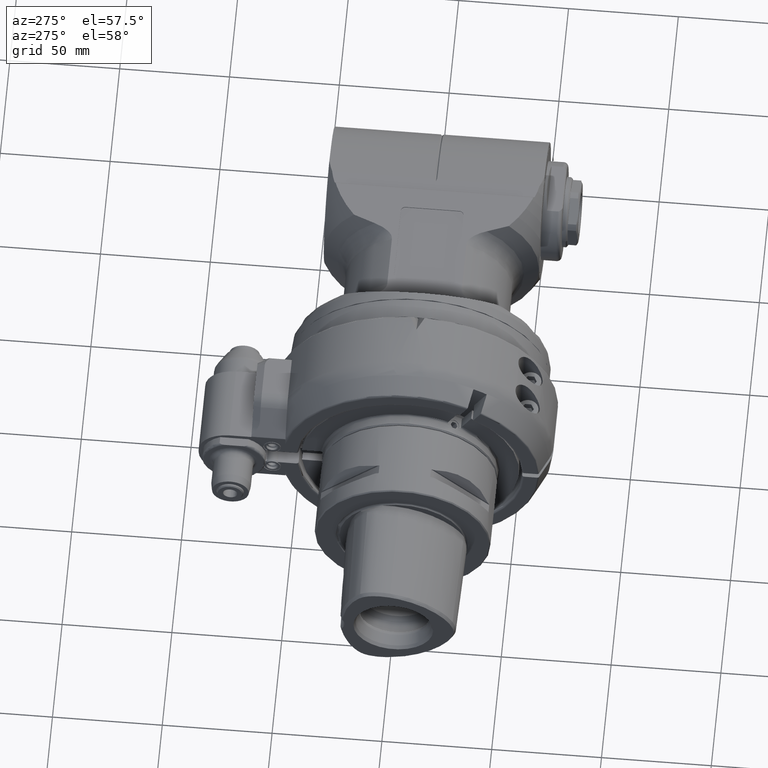
[diagram: clean part render]
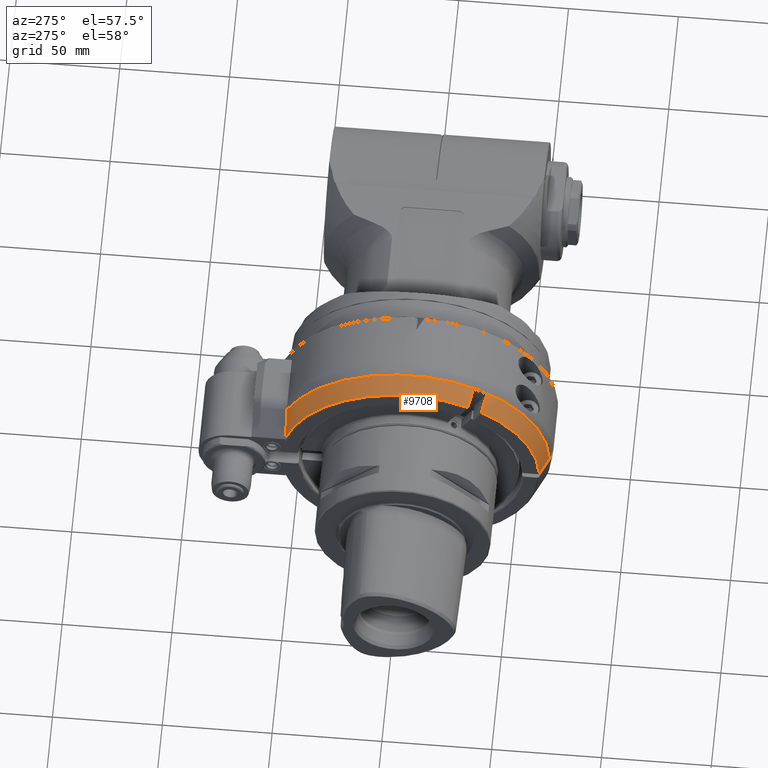
[diagram: same view with one face highlighted and labeled with its STEP entity id]
A machine part, auxiliary view. The second image highlights one B-rep face of the part: STEP entity #9708.
In plain terms, the highlighted conical surface has half-angle 25 deg.
Its self-contained STEP definition (entity closure, byte-faithful):
#171=CONICAL_SURFACE('',#10599,2.39089658552638,0.436332312998582);
#400=B_SPLINE_CURVE_WITH_KNOTS('',3,(#15901,#15902,#15903,#15904,#15905,
#15906,#15907,#15908,#15909,#15910),.UNSPECIFIED.,.F.,.F.,(4,3,3,4),(9.91190515018801E-6,
0.3333333333333,0.6666666666667,1.),.UNSPECIFIED.);
#401=B_SPLINE_CURVE_WITH_KNOTS('',3,(#15914,#15915,#15916,#15917,#15918,
#15919,#15920,#15921,#15922,#15923),.UNSPECIFIED.,.F.,.F.,(4,3,3,4),(0.,
0.3333333333333,0.6666666666667,0.999990370914251),.UNSPECIFIED.);
#402=B_SPLINE_CURVE_WITH_KNOTS('',3,(#15926,#15927,#15928,#15929,#15930,
#15931,#15932,#15933,#15934,#15935),.UNSPECIFIED.,.F.,.F.,(4,3,3,4),(1.66605082885526E-6,
0.3333333333333,0.6666666666667,1.),.UNSPECIFIED.);
#618=(
BOUNDED_CURVE()
B_SPLINE_CURVE(2,(#15895,#15896,#15897),.UNSPECIFIED.,.F.,.F.)
B_SPLINE_CURVE_WITH_KNOTS((3,3),(0.487603386350164,2.21066280968085),
 .UNSPECIFIED.)
CURVE()
GEOMETRIC_REPRESENTATION_ITEM()
RATIONAL_B_SPLINE_CURVE((1.00692453140539,1.01790271037782,1.0200003519283))
REPRESENTATION_ITEM('')
);
#1072=FACE_OUTER_BOUND('',#1714,.T.);
#1714=EDGE_LOOP('',(#7396,#7397,#7398,#7399,#7400,#7401,#7402,#7403));
#3544=CIRCLE('',#10598,2.46804366214606);
#3545=CIRCLE('',#10600,2.31374950890669);
#3546=CIRCLE('',#10601,2.45919744465827);
#3547=CIRCLE('',#10602,2.31374950890669);
#4212=VERTEX_POINT('',#15850);
#4213=VERTEX_POINT('',#15851);
#4214=VERTEX_POINT('',#15894);
#4215=VERTEX_POINT('',#15898);
#4216=VERTEX_POINT('',#15900);
#4217=VERTEX_POINT('',#15911);
#4218=VERTEX_POINT('',#15913);
#4219=VERTEX_POINT('',#15924);
#5372=EDGE_CURVE('',#4212,#4213,#3544,.T.);
#5376=EDGE_CURVE('',#4214,#4212,#618,.T.);
#5377=EDGE_CURVE('',#4215,#4214,#3545,.T.);
#5378=EDGE_CURVE('',#4215,#4216,#400,.T.);
#5379=EDGE_CURVE('',#4217,#4216,#3546,.T.);
#5380=EDGE_CURVE('',#4217,#4218,#401,.T.);
#5381=EDGE_CURVE('',#4219,#4218,#3547,.T.);
#5382=EDGE_CURVE('',#4219,#4213,#402,.T.);
#7396=ORIENTED_EDGE('',*,*,#5372,.F.);
#7397=ORIENTED_EDGE('',*,*,#5376,.F.);
#7398=ORIENTED_EDGE('',*,*,#5377,.F.);
#7399=ORIENTED_EDGE('',*,*,#5378,.T.);
#7400=ORIENTED_EDGE('',*,*,#5379,.F.);
#7401=ORIENTED_EDGE('',*,*,#5380,.T.);
#7402=ORIENTED_EDGE('',*,*,#5381,.F.);
#7403=ORIENTED_EDGE('',*,*,#5382,.T.);
#9708=ADVANCED_FACE('',(#1072),#171,.T.);
#10598=AXIS2_PLACEMENT_3D('',#15852,#12404,#12405);
#10599=AXIS2_PLACEMENT_3D('',#15893,#12406,#12407);
#10600=AXIS2_PLACEMENT_3D('',#15899,#12408,#12409);
#10601=AXIS2_PLACEMENT_3D('',#15912,#12410,#12411);
#10602=AXIS2_PLACEMENT_3D('',#15925,#12412,#12413);
#12404=DIRECTION('center_axis',(1.,0.,0.));
#12405=DIRECTION('ref_axis',(0.,0.905272464491611,0.424831454853905));
#12406=DIRECTION('center_axis',(1.,0.,0.));
#12407=DIRECTION('ref_axis',(0.,-1.,0.));
#12408=DIRECTION('center_axis',(-1.,0.,0.));
#12409=DIRECTION('ref_axis',(0.,-0.447536399523913,0.894265716161126));
#12410=DIRECTION('center_axis',(-1.,0.,0.));
#12411=DIRECTION('ref_axis',(0.,-0.547740141563298,0.836648514801896));
#12412=DIRECTION('center_axis',(-1.,0.,0.));
#12413=DIRECTION('ref_axis',(0.,-0.99967422101286,0.025523554657049));
#15850=CARTESIAN_POINT('',(-1.10307646947126,2.23425196850394,1.04850257963268));
#15851=CARTESIAN_POINT('',(-1.10307665834427,-2.46733694032902,0.0590551131079336));
#15852=CARTESIAN_POINT('Origin',(-1.10307646947126,0.,0.));
#15893=CARTESIAN_POINT('Origin',(-1.26851890917913,0.,0.));
#15894=CARTESIAN_POINT('',(-1.4339613488874,2.23425196850394,0.601294379819291));
#15895=CARTESIAN_POINT('Ctrl Pts',(-1.43396134888719,2.23425196850394,0.601294379819171));
#15896=CARTESIAN_POINT('Ctrl Pts',(-1.31336516447927,2.23425196850394,0.817683444688849));
#15897=CARTESIAN_POINT('Ctrl Pts',(-1.10307646947622,2.23425196850394,1.04850257962674));
#15898=CARTESIAN_POINT('',(-1.43396134916224,-1.03548712492728,2.06910686210335));
#15899=CARTESIAN_POINT('Origin',(-1.4339613488874,0.,0.));
#15900=CARTESIAN_POINT('',(-1.12204724409449,-1.10833273810354,2.1952791652685));
#15901=CARTESIAN_POINT('Ctrl Pts',(-1.43396134971318,-1.03548712550176,
2.06910686313348));
#15902=CARTESIAN_POINT('Ctrl Pts',(-1.39930068364818,-1.04358276202554,
2.08312891691229));
#15903=CARTESIAN_POINT('Ctrl Pts',(-1.36464575266739,-1.05167675331789,
2.09714812106665));
#15904=CARTESIAN_POINT('Ctrl Pts',(-1.32999008006153,-1.05977063656886,
2.11116713808786));
#15905=CARTESIAN_POINT('Ctrl Pts',(-1.29533337691378,-1.06786476050439,
2.12518657198696));
#15906=CARTESIAN_POINT('Ctrl Pts',(-1.26067593209685,-1.07595877639212,
2.13920581874178));
#15907=CARTESIAN_POINT('Ctrl Pts',(-1.22601868611869,-1.08405248033534,
2.15322452519286));
#15908=CARTESIAN_POINT('Ctrl Pts',(-1.19136144014055,-1.09214618427856,
2.16724323164393));
#15909=CARTESIAN_POINT('Ctrl Pts',(-1.15670439300118,-1.10023957627727,
2.18126139779128));
#15910=CARTESIAN_POINT('Ctrl Pts',(-1.12204724409449,-1.10833273810365,
2.19527916526844));
#15911=CARTESIAN_POINT('',(-1.12204724409449,-1.34700115646929,2.05748388967795));
#15912=CARTESIAN_POINT('Origin',(-1.12204724409449,0.,0.));
#15913=CARTESIAN_POINT('',(-1.43396134915434,-1.27415554325436,1.93131158651555));
#15914=CARTESIAN_POINT('Ctrl Pts',(-1.12204724409449,-1.34700115646921,
2.057483889678));
#15915=CARTESIAN_POINT('Ctrl Pts',(-1.15670439300157,-1.33890799464282,
2.04346612220084));
#15916=CARTESIAN_POINT('Ctrl Pts',(-1.19136144308287,-1.33081460195487,
2.0294479548597));
#15917=CARTESIAN_POINT('Ctrl Pts',(-1.22601868611899,-1.32272089870085,
2.01542924960236));
#15918=CARTESIAN_POINT('Ctrl Pts',(-1.26067592915511,-1.31462719544683,
2.00141054434502));
#15919=CARTESIAN_POINT('Ctrl Pts',(-1.29533336514607,-1.30653318162675,
1.98739130117148));
#15920=CARTESIAN_POINT('Ctrl Pts',(-1.32999008006182,-1.29843905493436,
1.97337186249738));
#15921=CARTESIAN_POINT('Ctrl Pts',(-1.36464579384012,-1.29034516205909,
1.95935282880641));
#15922=CARTESIAN_POINT('Ctrl Pts',(-1.39930078658489,-1.28225115631804,
1.94533359962616));
#15923=CARTESIAN_POINT('Ctrl Pts',(-1.43396134968945,-1.27415554384186,
1.93131158749903));
#15924=CARTESIAN_POINT('',(-1.43396134889639,-2.31299573795446,0.0590551120530612));
#15925=CARTESIAN_POINT('Origin',(-1.4339613488874,0.,0.));
#15926=CARTESIAN_POINT('Ctrl Pts',(-1.43396134891441,-2.3129957379931,0.0590551120533071));
#15927=CARTESIAN_POINT('Ctrl Pts',(-1.39719573236589,-2.33014541354955,
0.0590551120533071));
#15928=CARTESIAN_POINT('Ctrl Pts',(-1.36043112485977,-2.34729449394689,
0.0590551120533071));
#15929=CARTESIAN_POINT('Ctrl Pts',(-1.32366640961395,-2.36444350850695,
0.0590551120533071));
#15930=CARTESIAN_POINT('Ctrl Pts',(-1.28690151061155,-2.38159260878084,
0.0590551120533071));
#15931=CARTESIAN_POINT('Ctrl Pts',(-1.25013650386837,-2.3987416432168,0.0590551120533071));
#15932=CARTESIAN_POINT('Ctrl Pts',(-1.21337144423674,-2.41589059341017,
0.0590551120533071));
#15933=CARTESIAN_POINT('Ctrl Pts',(-1.17660638460511,-2.43303954360354,
0.0590551120533071));
#15934=CARTESIAN_POINT('Ctrl Pts',(-1.13984127208504,-2.45018840955433,
0.0590551120533071));
#15935=CARTESIAN_POINT('Ctrl Pts',(-1.10307684718622,-2.46733685225945,
0.0590551120533071));